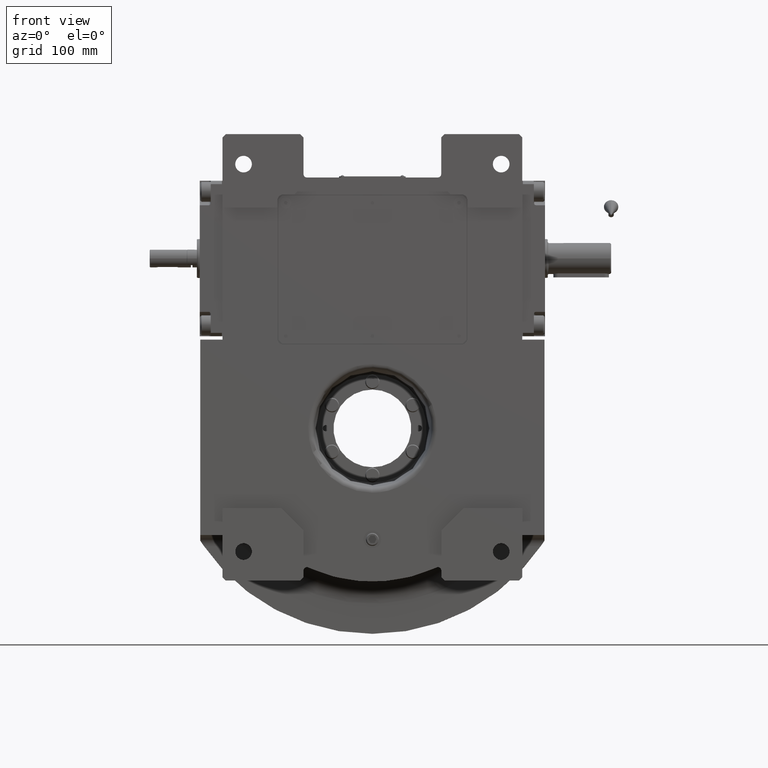
[diagram: clean part render]
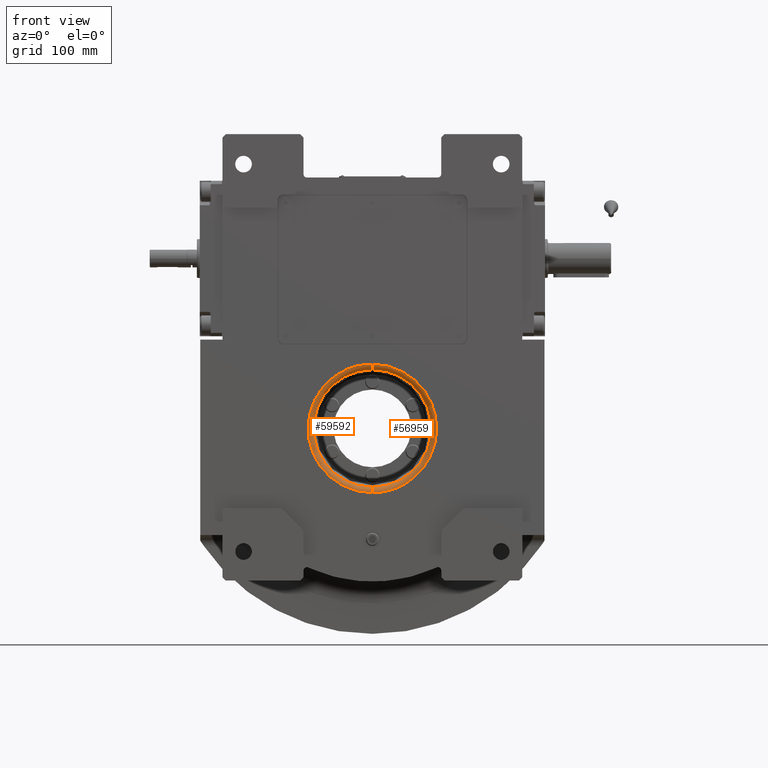
[diagram: same view with one multi-face feature highlighted, each face labeled with its STEP entity id]
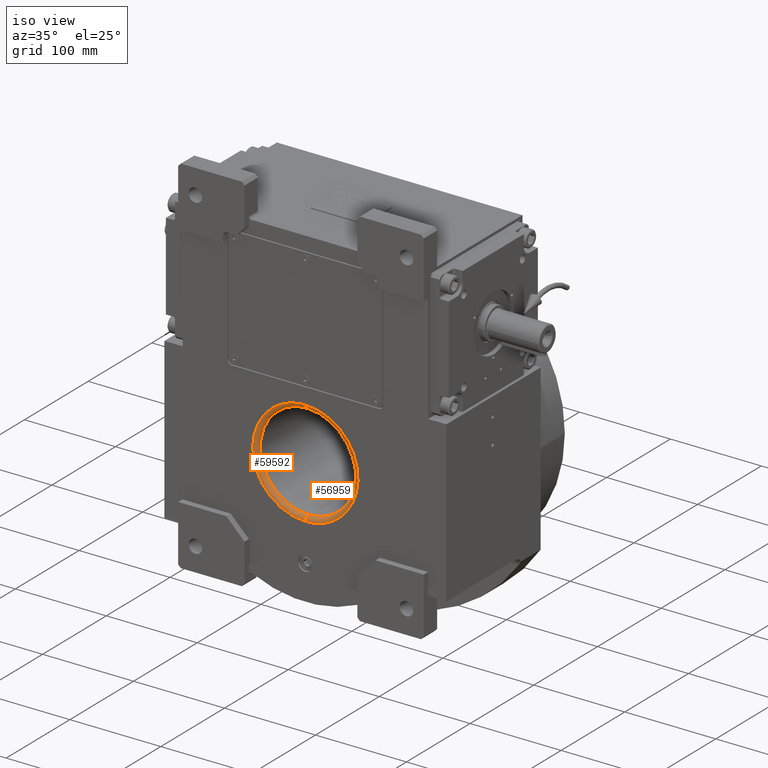
[diagram: same view with one multi-face feature highlighted, each face labeled with its STEP entity id]
A machine part, front view. The highlighted faces form ONE feature: a constant-radius fillet chain: 2 tangent blend faces with common blend radius 5 mm. The faces share edges in the B-rep.
A second angle (iso view) of the same feature is appended — it is thin or edge-on in the first view.
Their STEP definitions:
[1] entity #56959 (Torus):
#655 = AXIS2_PLACEMENT_3D ( 'NONE', #30391, #51787, #7942 ) ;
#1539 = DIRECTION ( 'NONE',  ( -0.02407689559208884764, -5.981351962795569250E-35, 0.9997101095310817476 ) ) ;
#5295 = TOROIDAL_SURFACE ( 'NONE', #44535, 57.88848986029619681, 5.000000000000000000 ) ;
#5524 = DIRECTION ( 'NONE',  ( -1.000000000000000000, 2.334229079672190055E-11, 3.440570546148015035E-12 ) ) ;
#6354 = EDGE_CURVE ( 'NONE', #37709, #48878, #31613, .T. ) ;
#7942 = DIRECTION ( 'NONE',  ( 2.334134032802207626E-11, -1.000000000000000000, -1.099120794378903965E-12 ) ) ;
#9263 = DIRECTION ( 'NONE',  ( 0.9882587857891660388, 2.055887273401757417E-08, -0.1527893069246760438 ) ) ;
#11405 = AXIS2_PLACEMENT_3D ( 'NONE', #30680, #26085, #9263 ) ;
#11764 = CARTESIAN_POINT ( 'NONE',  ( 0.000000000000000000, -68.00000000000000000, 2.626597011442929886E-14 ) ) ;
#16878 = ORIENTED_EDGE ( 'NONE', *, *, #6354, .T. ) ;
#17205 = EDGE_CURVE ( 'NONE', #22334, #18951, #35844, .T. ) ;
#18556 = CARTESIAN_POINT ( 'NONE',  ( 115.7767661625584452, -73.00000000000000000, -57.88834748044417466 ) ) ;
#18951 = VERTEX_POINT ( 'NONE', #42806 ) ;
#20647 = DIRECTION ( 'NONE',  ( 4.421425797491955212E-18, -1.000000000000000000, 1.064850763030841984E-19 ) ) ;
#22334 = VERTEX_POINT ( 'NONE', #44236 ) ;
#22373 = CARTESIAN_POINT ( 'NONE',  ( 1.200603528221986005E-10, -68.00000000000000000, -57.88848986029619681 ) ) ;
#23478 = CARTESIAN_POINT ( 'NONE',  ( 1.116299612869330063E-12, -73.00000000000000000, -57.88848986029439914 ) ) ;
#24238 = CIRCLE ( 'NONE', #655, 5.000000000000004441 ) ;
#26085 = DIRECTION ( 'NONE',  ( -2.310691404686089221E-08, 0.9999999999999997780, -1.490116125507999888E-08 ) ) ;
#30206 = CIRCLE ( 'NONE', #47956, 5.000000000000004441 ) ;
#30391 = CARTESIAN_POINT ( 'NONE',  ( -1.200526696845962053E-10, -68.00000000000000000, 57.88848986029630339 ) ) ;
#30680 = CARTESIAN_POINT ( 'NONE',  ( -5.180071170158429987E-08, -68.11275406274060629, 3.434346457190809174E-14 ) ) ;
#31613 = CIRCLE ( 'NONE', #11405, 52.88976140256119152 ) ;
#35844 =( BOUNDED_CURVE ( )  B_SPLINE_CURVE ( 3, ( #61076, #44864, #18556, #23478 ),
 .UNSPECIFIED., .F., .F. ) 
 B_SPLINE_CURVE_WITH_KNOTS ( ( 4, 4 ),
 ( 4.559169057132199221, 7.700758191236885430 ),
 .UNSPECIFIED. ) 
 CURVE ( )  GEOMETRIC_REPRESENTATION_ITEM ( )  RATIONAL_B_SPLINE_CURVE ( ( 1.000000000000000000, 0.3333345064950357095, 0.3333345064950357095, 1.000000000000000000 ) ) 
 REPRESENTATION_ITEM ( '' )  );
#37709 = VERTEX_POINT ( 'NONE', #52896 ) ;
#42806 = CARTESIAN_POINT ( 'NONE',  ( 1.116299612869330063E-12, -73.00000000000000000, -57.88848986029439914 ) ) ;
#43488 = ORIENTED_EDGE ( 'NONE', *, *, #17205, .F. ) ;
#44236 = CARTESIAN_POINT ( 'NONE',  ( -1.115322681495329805E-12, -73.00000000000000000, 57.88848986029439914 ) ) ;
#44535 = AXIS2_PLACEMENT_3D ( 'NONE', #11764, #20647, #1539 ) ;
#44864 = CARTESIAN_POINT ( 'NONE',  ( 115.7767661625561999, -73.00000000000000000, 57.88822476622656410 ) ) ;
#45299 = ORIENTED_EDGE ( 'NONE', *, *, #45604, .T. ) ;
#45604 = EDGE_CURVE ( 'NONE', #22334, #37709, #24238, .T. ) ;
#47178 = ORIENTED_EDGE ( 'NONE', *, *, #48597, .F. ) ;
#47956 = AXIS2_PLACEMENT_3D ( 'NONE', #22373, #5524, #69461 ) ;
#48597 = EDGE_CURVE ( 'NONE', #18951, #48878, #30206, .T. ) ;
#48878 = VERTEX_POINT ( 'NONE', #51817 ) ;
#51787 = DIRECTION ( 'NONE',  ( 1.000000000000000000, 2.334134032802589874E-11, -3.443100538103175062E-12 ) ) ;
#51817 = CARTESIAN_POINT ( 'NONE',  ( 3.366158563859759886E-11, -68.11275327462200835, -52.88976135205919604 ) ) ;
#52896 = CARTESIAN_POINT ( 'NONE',  ( -3.366447261396295104E-11, -68.11275327462200835, 52.88976135205919604 ) ) ;
#56959 = ADVANCED_FACE ( 'NONE', ( #65145 ), #5295, .T. ) ;
#61076 = CARTESIAN_POINT ( 'NONE',  ( -1.115322681495329805E-12, -73.00000000000000000, 57.88848986029439914 ) ) ;
#62115 = EDGE_LOOP ( 'NONE', ( #45299, #16878, #47178, #43488 ) ) ;
#65145 = FACE_OUTER_BOUND ( 'NONE', #62115, .T. ) ;
#69461 = DIRECTION ( 'NONE',  ( -2.334229079671812977E-11, -1.000000000000000000, 1.093569679255778183E-12 ) ) ;
[2] entity #59592 (Torus):
#655 = AXIS2_PLACEMENT_3D ( 'NONE', #30391, #51787, #7942 ) ;
#1719 = CARTESIAN_POINT ( 'NONE',  ( -1.115322681495329805E-12, -73.00000000000000000, 57.88848986029439914 ) ) ;
#3980 = ORIENTED_EDGE ( 'NONE', *, *, #48597, .T. ) ;
#4462 =( BOUNDED_CURVE ( )  B_SPLINE_CURVE ( 3, ( #60049, #44216, #60395, #1719 ),
 .UNSPECIFIED., .F., .F. ) 
 B_SPLINE_CURVE_WITH_KNOTS ( ( 4, 4 ),
 ( 1.417576403733056045, 4.559165537837738036 ),
 .UNSPECIFIED. ) 
 CURVE ( )  GEOMETRIC_REPRESENTATION_ITEM ( )  RATIONAL_B_SPLINE_CURVE ( ( 1.000000000000000000, 0.3333345064950371528, 0.3333345064950371528, 1.000000000000000000 ) ) 
 REPRESENTATION_ITEM ( '' )  );
#5524 = DIRECTION ( 'NONE',  ( -1.000000000000000000, 2.334229079672190055E-11, 3.440570546148015035E-12 ) ) ;
#5772 = DIRECTION ( 'NONE',  ( 0.9882587347805640299, -2.055886669902873894E-08, -0.1527896368538074756 ) ) ;
#7878 = CARTESIAN_POINT ( 'NONE',  ( 0.000000000000000000, -68.00000000000000000, 2.626597011442929886E-14 ) ) ;
#7942 = DIRECTION ( 'NONE',  ( 2.334134032802207626E-11, -1.000000000000000000, -1.099120794378903965E-12 ) ) ;
#11068 = EDGE_CURVE ( 'NONE', #18951, #22334, #4462, .T. ) ;
#18951 = VERTEX_POINT ( 'NONE', #42806 ) ;
#19432 = FACE_OUTER_BOUND ( 'NONE', #66394, .T. ) ;
#22334 = VERTEX_POINT ( 'NONE', #44236 ) ;
#22373 = CARTESIAN_POINT ( 'NONE',  ( 1.200603528221986005E-10, -68.00000000000000000, -57.88848986029619681 ) ) ;
#24238 = CIRCLE ( 'NONE', #655, 5.000000000000004441 ) ;
#29977 = DIRECTION ( 'NONE',  ( 0.02407689559208889621, -2.392540785118227540E-35, -0.9997101095310817476 ) ) ;
#30206 = CIRCLE ( 'NONE', #47956, 5.000000000000004441 ) ;
#30391 = CARTESIAN_POINT ( 'NONE',  ( -1.200526696845962053E-10, -68.00000000000000000, 57.88848986029630339 ) ) ;
#32323 = TOROIDAL_SURFACE ( 'NONE', #62614, 57.88848986029619681, 5.000000000000000000 ) ;
#37709 = VERTEX_POINT ( 'NONE', #52896 ) ;
#41113 = AXIS2_PLACEMENT_3D ( 'NONE', #43669, #49619, #5772 ) ;
#42623 = ORIENTED_EDGE ( 'NONE', *, *, #11068, .F. ) ;
#42806 = CARTESIAN_POINT ( 'NONE',  ( 1.116299612869330063E-12, -73.00000000000000000, -57.88848986029439914 ) ) ;
#43361 = CIRCLE ( 'NONE', #41113, 52.88976140256119152 ) ;
#43669 = CARTESIAN_POINT ( 'NONE',  ( 5.180066373969149615E-08, -68.11275406274060629, 4.736386318413870025E-15 ) ) ;
#44216 = CARTESIAN_POINT ( 'NONE',  ( -115.7767661625559867, -73.00000000000000000, -57.88822476622628699 ) ) ;
#44236 = CARTESIAN_POINT ( 'NONE',  ( -1.115322681495329805E-12, -73.00000000000000000, 57.88848986029439914 ) ) ;
#45604 = EDGE_CURVE ( 'NONE', #22334, #37709, #24238, .T. ) ;
#45975 = EDGE_CURVE ( 'NONE', #48878, #37709, #43361, .T. ) ;
#47956 = AXIS2_PLACEMENT_3D ( 'NONE', #22373, #5524, #69461 ) ;
#48597 = EDGE_CURVE ( 'NONE', #18951, #48878, #30206, .T. ) ;
#48878 = VERTEX_POINT ( 'NONE', #51817 ) ;
#49619 = DIRECTION ( 'NONE',  ( 2.310691404686464099E-08, 0.9999999999999997780, 1.490116125507999888E-08 ) ) ;
#50328 = DIRECTION ( 'NONE',  ( 4.421425797491959834E-18, -1.000000000000000000, 1.064850763030846077E-19 ) ) ;
#51787 = DIRECTION ( 'NONE',  ( 1.000000000000000000, 2.334134032802589874E-11, -3.443100538103175062E-12 ) ) ;
#51817 = CARTESIAN_POINT ( 'NONE',  ( 3.366158563859759886E-11, -68.11275327462200835, -52.88976135205919604 ) ) ;
#52896 = CARTESIAN_POINT ( 'NONE',  ( -3.366447261396295104E-11, -68.11275327462200835, 52.88976135205919604 ) ) ;
#54900 = ORIENTED_EDGE ( 'NONE', *, *, #45604, .F. ) ;
#59592 = ADVANCED_FACE ( 'NONE', ( #19432 ), #32323, .T. ) ;
#60049 = CARTESIAN_POINT ( 'NONE',  ( 1.116299612869330063E-12, -73.00000000000000000, -57.88848986029439914 ) ) ;
#60395 = CARTESIAN_POINT ( 'NONE',  ( -115.7767661625582463, -73.00000000000000000, 57.88834748044401834 ) ) ;
#62614 = AXIS2_PLACEMENT_3D ( 'NONE', #7878, #50328, #29977 ) ;
#63324 = ORIENTED_EDGE ( 'NONE', *, *, #45975, .T. ) ;
#66394 = EDGE_LOOP ( 'NONE', ( #3980, #63324, #54900, #42623 ) ) ;
#69461 = DIRECTION ( 'NONE',  ( -2.334229079671812977E-11, -1.000000000000000000, 1.093569679255778183E-12 ) ) ;